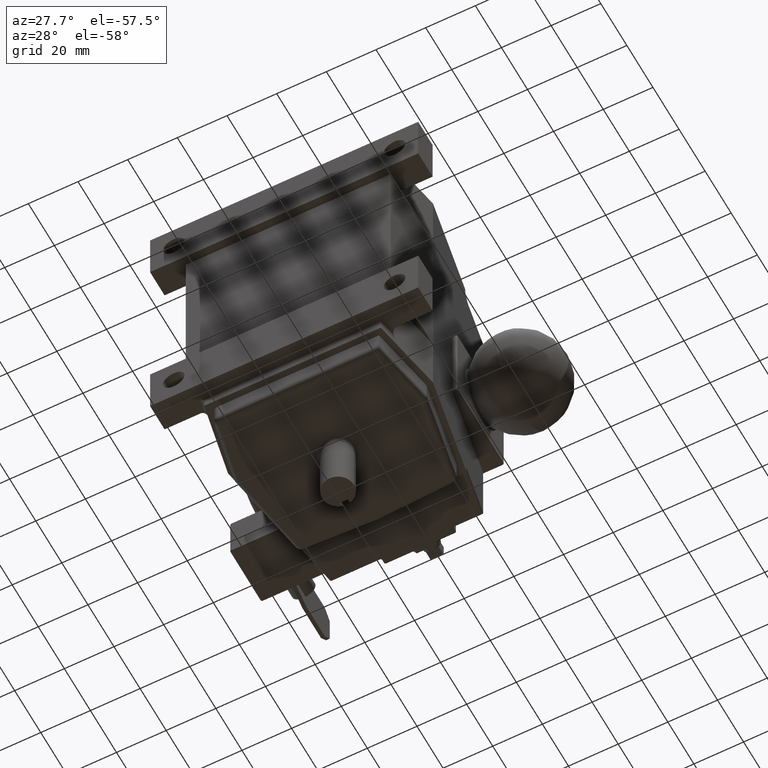
[diagram: clean part render]
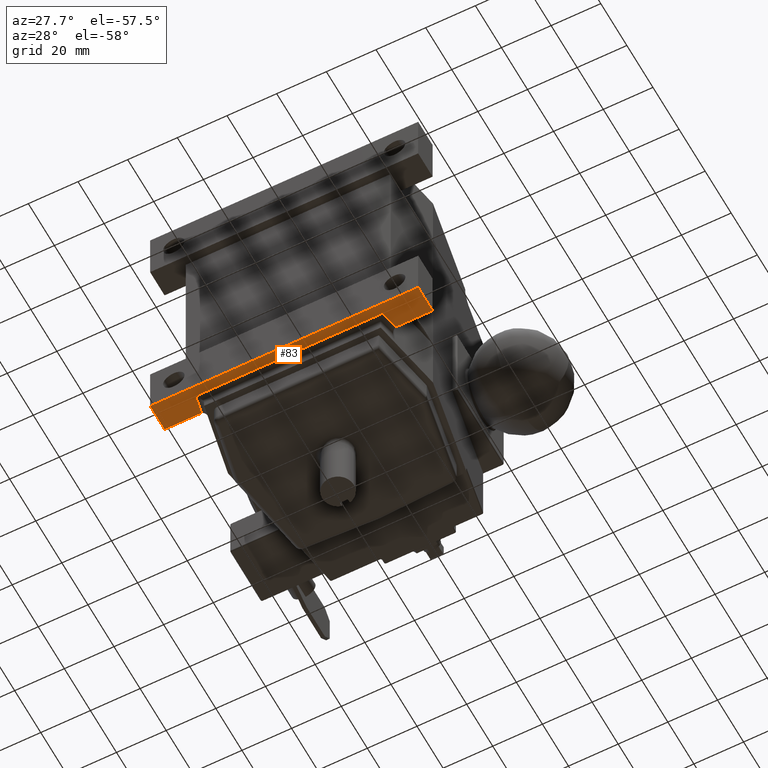
[diagram: same view with one face highlighted and labeled with its STEP entity id]
A machine part, auxiliary view. The second image highlights one B-rep face of the part: STEP entity #83.
In plain terms, the highlighted planar face has unit normal (0, -0, 1).
Its self-contained STEP definition (entity closure, byte-faithful):
#83 = ADVANCED_FACE ( 'NONE', ( #3074 ), #7747, .F. ) ;
#304 = EDGE_LOOP ( 'NONE', ( #1138, #1139, #1140, #1141, #1142, #1143, #1144, #1145, #1146, #1147 ) ) ;
#708 = EDGE_CURVE ( 'NONE', #10090, #10091, #3459, .T. ) ;
#715 = EDGE_CURVE ( 'NONE', #10097, #10098, #4883, .T. ) ;
#717 = EDGE_CURVE ( 'NONE', #10101, #10102, #4890, .T. ) ;
#718 = EDGE_CURVE ( 'NONE', #10103, #10091, #4894, .T. ) ;
#719 = EDGE_CURVE ( 'NONE', #10098, #10105, #3456, .T. ) ;
#720 = EDGE_CURVE ( 'NONE', #10100, #10101, #4893, .T. ) ;
#721 = EDGE_CURVE ( 'NONE', #10097, #10100, #4899, .T. ) ;
#722 = EDGE_CURVE ( 'NONE', #10102, #10103, #4892, .T. ) ;
#723 = EDGE_CURVE ( 'NONE', #10090, #10104, #4901, .T. ) ;
#725 = EDGE_CURVE ( 'NONE', #10104, #10105, #4898, .T. ) ;
#1138 = ORIENTED_EDGE ( 'NONE', *, *, #721, .T. ) ;
#1139 = ORIENTED_EDGE ( 'NONE', *, *, #720, .T. ) ;
#1140 = ORIENTED_EDGE ( 'NONE', *, *, #717, .T. ) ;
#1141 = ORIENTED_EDGE ( 'NONE', *, *, #722, .T. ) ;
#1142 = ORIENTED_EDGE ( 'NONE', *, *, #718, .T. ) ;
#1143 = ORIENTED_EDGE ( 'NONE', *, *, #708, .F. ) ;
#1144 = ORIENTED_EDGE ( 'NONE', *, *, #723, .T. ) ;
#1145 = ORIENTED_EDGE ( 'NONE', *, *, #725, .T. ) ;
#1146 = ORIENTED_EDGE ( 'NONE', *, *, #719, .F. ) ;
#1147 = ORIENTED_EDGE ( 'NONE', *, *, #715, .F. ) ;
#2268 = AXIS2_PLACEMENT_3D ( 'NONE', #7748, #7753, #7754 ) ;
#3074 = FACE_OUTER_BOUND ( 'NONE', #304, .T. ) ;
#3456 = LINE ( 'NONE', #4395, #3467 ) ;
#3459 = LINE ( 'NONE', #4369, #3460 ) ;
#3460 = VECTOR ( 'NONE', #4370, 39.37007874015748100 ) ;
#3467 = VECTOR ( 'NONE', #4396, 39.37007874015748100 ) ;
#4369 = CARTESIAN_POINT ( 'NONE',  ( 2.124999999999998200, 0.4375000000000000000, -2.162499999999999600 ) ) ;
#4370 = DIRECTION ( 'NONE',  ( -1.000000000000000000, 0.0000000000000000000, 1.285575526430242600E-016 ) ) ;
#4384 = CARTESIAN_POINT ( 'NONE',  ( 2.124999999999998200, 0.4375000000000000000, -2.162499999999999600 ) ) ;
#4385 = DIRECTION ( 'NONE',  ( -1.000000000000000000, 0.0000000000000000000, 1.285575526430242600E-016 ) ) ;
#4388 = CARTESIAN_POINT ( 'NONE',  ( -1.498139265486002200, 0.2307988393614334200, -2.162499999999999200 ) ) ;
#4389 = CARTESIAN_POINT ( 'NONE',  ( 1.399999999999999200, 0.1499999999999992500, -2.162499999999999600 ) ) ;
#4390 = DIRECTION ( 'NONE',  ( 1.000000000000000000, -1.219574997171546300E-016, -1.285575526430242400E-016 ) ) ;
#4391 = CARTESIAN_POINT ( 'NONE',  ( 1.558146014306590600, 0.5374999999999999800, -2.162499999999999600 ) ) ;
#4392 = DIRECTION ( 'NONE',  ( 1.285575526430242400E-016, -0.0000000000000000000, 1.000000000000000000 ) ) ;
#4393 = DIRECTION ( 'NONE',  ( 1.000000000000000000, 0.0000000000000000000, 0.0000000000000000000 ) ) ;
#4394 = CARTESIAN_POINT ( 'NONE',  ( 2.124999999999998200, 0.0000000000000000000, -2.162499999999999600 ) ) ;
#4395 = CARTESIAN_POINT ( 'NONE',  ( -2.124999999999998200, 0.4375000000000000000, -2.162499999999999200 ) ) ;
#4396 = DIRECTION ( 'NONE',  ( -0.0000000000000000000, -1.000000000000000000, -0.0000000000000000000 ) ) ;
#4397 = CARTESIAN_POINT ( 'NONE',  ( -1.558146014306591300, 0.5374999999999999800, -2.162499999999999200 ) ) ;
#4398 = DIRECTION ( 'NONE',  ( 0.1920116063856562900, -0.9813926548600207000, -2.468454219599565600E-017 ) ) ;
#4399 = DIRECTION ( 'NONE',  ( 1.285575526430242400E-016, -0.0000000000000000000, 1.000000000000000000 ) ) ;
#4400 = DIRECTION ( 'NONE',  ( 1.000000000000000000, 0.0000000000000000000, 0.0000000000000000000 ) ) ;
#4401 = CARTESIAN_POINT ( 'NONE',  ( 1.534824048094697300, 0.4182988393614340800, -2.162499999999999600 ) ) ;
#4402 = DIRECTION ( 'NONE',  ( 0.1920116063856562900, 0.9813926548600207000, -2.468454219599565600E-017 ) ) ;
#4403 = CARTESIAN_POINT ( 'NONE',  ( 2.124999999999998200, 0.4375000000000000000, -2.162499999999999600 ) ) ;
#4404 = DIRECTION ( 'NONE',  ( -0.0000000000000000000, -1.000000000000000000, -0.0000000000000000000 ) ) ;
#4408 = DIRECTION ( 'NONE',  ( -1.000000000000000000, 0.0000000000000000000, 1.285575526430242600E-016 ) ) ;
#4731 = AXIS2_PLACEMENT_3D ( 'NONE', #4391, #4392, #4393 ) ;
#4734 = AXIS2_PLACEMENT_3D ( 'NONE', #4397, #4399, #4400 ) ;
#4883 = LINE ( 'NONE', #4384, #4885 ) ;
#4885 = VECTOR ( 'NONE', #4385, 39.37007874015748100 ) ;
#4890 = LINE ( 'NONE', #4389, #4891 ) ;
#4891 = VECTOR ( 'NONE', #4390, 39.37007874015748100 ) ;
#4892 = LINE ( 'NONE', #4401, #4900 ) ;
#4893 = LINE ( 'NONE', #4388, #4895 ) ;
#4894 = CIRCLE ( 'NONE', #4731, 0.1000000000000000200 ) ;
#4895 = VECTOR ( 'NONE', #4398, 39.37007874015748100 ) ;
#4898 = LINE ( 'NONE', #4394, #4905 ) ;
#4899 = CIRCLE ( 'NONE', #4734, 0.1000000000000000200 ) ;
#4900 = VECTOR ( 'NONE', #4402, 39.37007874015748100 ) ;
#4901 = LINE ( 'NONE', #4403, #4902 ) ;
#4902 = VECTOR ( 'NONE', #4404, 39.37007874015748100 ) ;
#4905 = VECTOR ( 'NONE', #4408, 39.37007874015748100 ) ;
#7747 = PLANE ( 'NONE',  #2268 ) ;
#7748 = CARTESIAN_POINT ( 'NONE',  ( 2.124999999999998200, 0.4375000000000000000, -2.162499999999999600 ) ) ;
#7753 = DIRECTION ( 'NONE',  ( 1.285575526430242400E-016, -0.0000000000000000000, 1.000000000000000000 ) ) ;
#7754 = DIRECTION ( 'NONE',  ( 1.000000000000000000, 0.0000000000000000000, -1.285575526430242400E-016 ) ) ;
#9442 = CARTESIAN_POINT ( 'NONE',  ( 2.124999999999998200, 0.4375000000000000000, -2.162499999999999600 ) ) ;
#9443 = CARTESIAN_POINT ( 'NONE',  ( 1.558146014306591100, 0.4375000000000000000, -2.162499999999999600 ) ) ;
#9449 = CARTESIAN_POINT ( 'NONE',  ( -1.558146014306591300, 0.4375000000000000000, -2.162499999999999200 ) ) ;
#9450 = CARTESIAN_POINT ( 'NONE',  ( -2.124999999999998200, 0.4375000000000000000, -2.162499999999999200 ) ) ;
#9452 = CARTESIAN_POINT ( 'NONE',  ( -1.538944853668025500, 0.4393607345139978700, -2.162499999999999200 ) ) ;
#9453 = CARTESIAN_POINT ( 'NONE',  ( -1.482330796915286800, 0.1499999999999996100, -2.162499999999999200 ) ) ;
#9454 = CARTESIAN_POINT ( 'NONE',  ( 1.482330796915286100, 0.1499999999999992200, -2.162499999999999600 ) ) ;
#9455 = CARTESIAN_POINT ( 'NONE',  ( 1.538944853668025000, 0.4393607345139979300, -2.162499999999999600 ) ) ;
#9456 = CARTESIAN_POINT ( 'NONE',  ( 2.124999999999998200, 0.0000000000000000000, -2.162499999999999600 ) ) ;
#9457 = CARTESIAN_POINT ( 'NONE',  ( -2.124999999999998200, 0.0000000000000000000, -2.162499999999999200 ) ) ;
#10090 = VERTEX_POINT ( 'NONE', #9442 ) ;
#10091 = VERTEX_POINT ( 'NONE', #9443 ) ;
#10097 = VERTEX_POINT ( 'NONE', #9449 ) ;
#10098 = VERTEX_POINT ( 'NONE', #9450 ) ;
#10100 = VERTEX_POINT ( 'NONE', #9452 ) ;
#10101 = VERTEX_POINT ( 'NONE', #9453 ) ;
#10102 = VERTEX_POINT ( 'NONE', #9454 ) ;
#10103 = VERTEX_POINT ( 'NONE', #9455 ) ;
#10104 = VERTEX_POINT ( 'NONE', #9456 ) ;
#10105 = VERTEX_POINT ( 'NONE', #9457 ) ;